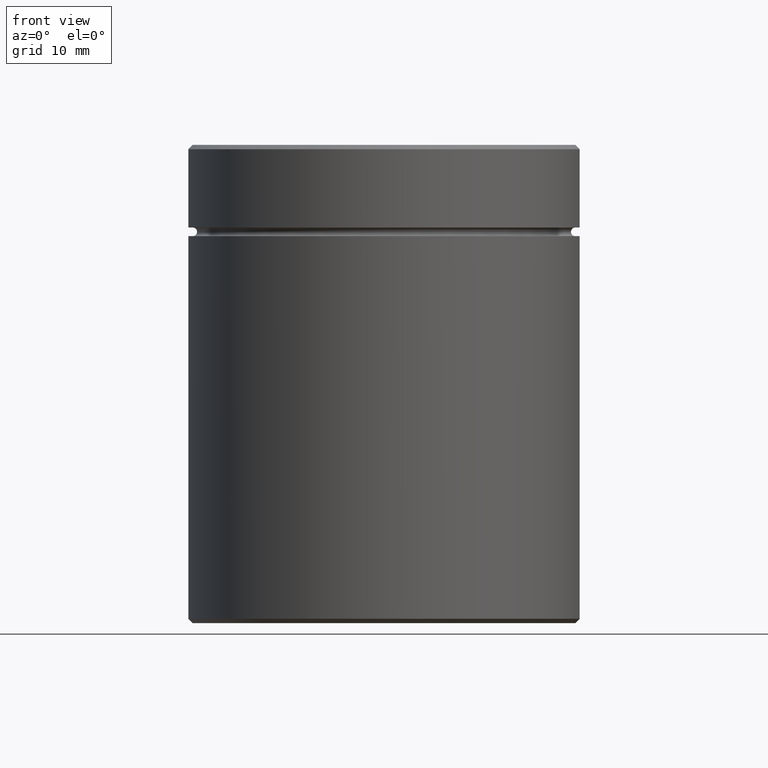
[diagram: clean part render]
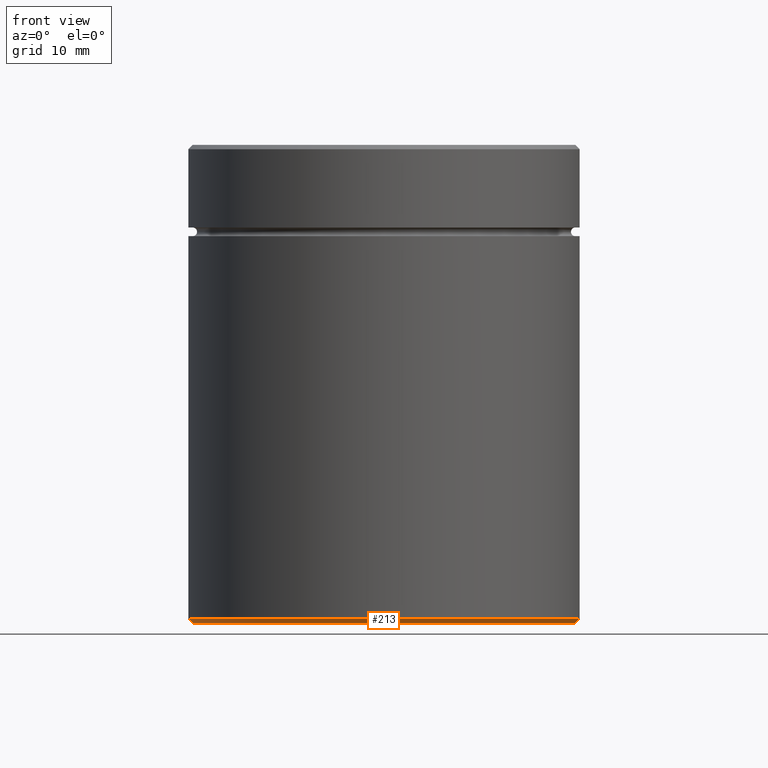
[diagram: same view with one face highlighted and labeled with its STEP entity id]
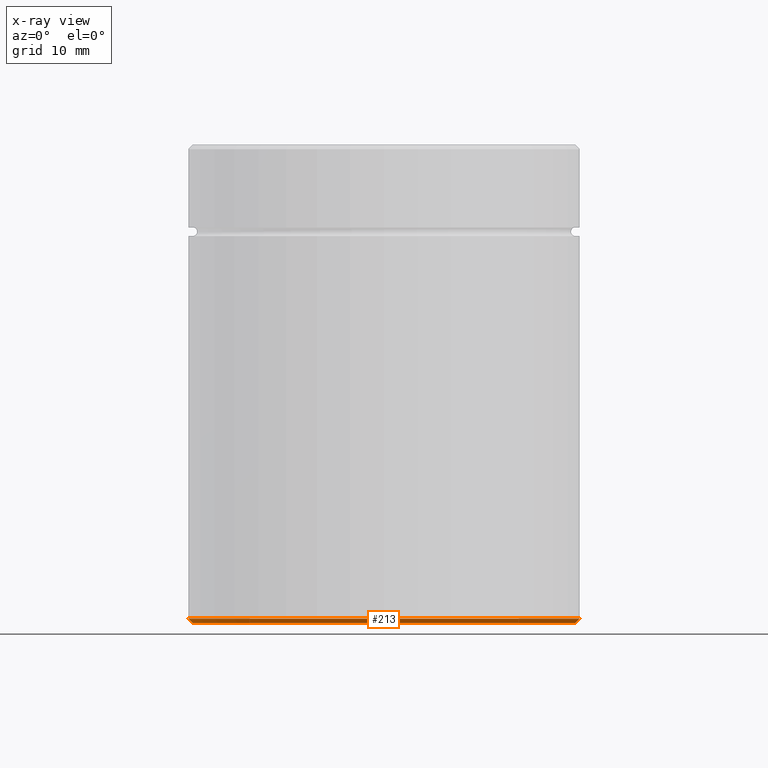
[diagram: x-ray of the same camera — body ghosted, the highlighted face saturated]
A machine part, front view. The second image highlights one B-rep face of the part: STEP entity #213.
The next image is the same camera in x-ray: the body ghosted, the highlighted face saturated — about 0% of this face is hidden behind the body in this view.
In plain terms, the highlighted conical surface has half-angle 45 deg.
Its self-contained STEP definition (entity closure, byte-faithful):
#2 = EDGE_CURVE ( 'NONE', #394, #326, #10, .T. ) ;
#5 = VECTOR ( 'NONE', #186, 1000.000000000000114 ) ;
#10 = CIRCLE ( 'NONE', #49, 22.50000000000000000 ) ;
#23 = CONICAL_SURFACE ( 'NONE', #53, 22.50000000000000000, 0.7853981633974482790 ) ;
#24 = VERTEX_POINT ( 'NONE', #565 ) ;
#32 = EDGE_CURVE ( 'NONE', #24, #326, #135, .T. ) ;
#49 = AXIS2_PLACEMENT_3D ( 'NONE', #485, #486, #173 ) ;
#50 = ORIENTED_EDGE ( 'NONE', *, *, #190, .F. ) ;
#53 = AXIS2_PLACEMENT_3D ( 'NONE', #531, #264, #148 ) ;
#98 = LINE ( 'NONE', #383, #5 ) ;
#135 = LINE ( 'NONE', #367, #357 ) ;
#141 = DIRECTION ( 'NONE',  ( -1.000000000000000000, 0.000000000000000000, 0.000000000000000000 ) ) ;
#148 = DIRECTION ( 'NONE',  ( 1.000000000000000000, 0.000000000000000000, 0.000000000000000000 ) ) ;
#153 = CARTESIAN_POINT ( 'NONE',  ( 22.50000000000000000, 0.000000000000000000, -54.49999999999999289 ) ) ;
#173 = DIRECTION ( 'NONE',  ( -1.000000000000000000, 0.000000000000000000, 0.000000000000000000 ) ) ;
#177 = ORIENTED_EDGE ( 'NONE', *, *, #183, .F. ) ;
#183 = EDGE_CURVE ( 'NONE', #347, #394, #98, .T. ) ;
#186 = DIRECTION ( 'NONE',  ( -0.7071067811865474617, 8.659560562354932858E-17, 0.7071067811865474617 ) ) ;
#190 = EDGE_CURVE ( 'NONE', #24, #347, #225, .T. ) ;
#206 = AXIS2_PLACEMENT_3D ( 'NONE', #449, #441, #141 ) ;
#213 = ADVANCED_FACE ( 'NONE', ( #529 ), #23, .T. ) ;
#225 = CIRCLE ( 'NONE', #206, 21.99999999999999289 ) ;
#264 = DIRECTION ( 'NONE',  ( -0.000000000000000000, -0.000000000000000000, 1.000000000000000000 ) ) ;
#294 = DIRECTION ( 'NONE',  ( 0.7071067811865474617, 0.000000000000000000, 0.7071067811865474617 ) ) ;
#311 = CARTESIAN_POINT ( 'NONE',  ( -21.99999999999999289, 2.724839128102860202E-15, -55.00000000000000000 ) ) ;
#326 = VERTEX_POINT ( 'NONE', #153 ) ;
#347 = VERTEX_POINT ( 'NONE', #311 ) ;
#357 = VECTOR ( 'NONE', #294, 1000.000000000000114 ) ;
#367 = CARTESIAN_POINT ( 'NONE',  ( 22.50000000000000000, 0.000000000000000000, -54.49999999999999289 ) ) ;
#383 = CARTESIAN_POINT ( 'NONE',  ( -22.50000000000000000, 2.755455298081544778E-15, -54.49999999999999289 ) ) ;
#385 = CARTESIAN_POINT ( 'NONE',  ( -22.50000000000000000, 2.755455298081544778E-15, -54.49999999999999289 ) ) ;
#394 = VERTEX_POINT ( 'NONE', #385 ) ;
#411 = ORIENTED_EDGE ( 'NONE', *, *, #2, .F. ) ;
#441 = DIRECTION ( 'NONE',  ( 0.000000000000000000, 0.000000000000000000, -1.000000000000000000 ) ) ;
#449 = CARTESIAN_POINT ( 'NONE',  ( 0.000000000000000000, 0.000000000000000000, -55.00000000000000000 ) ) ;
#485 = CARTESIAN_POINT ( 'NONE',  ( 0.000000000000000000, 0.000000000000000000, -54.49999999999999289 ) ) ;
#486 = DIRECTION ( 'NONE',  ( -0.000000000000000000, -0.000000000000000000, 1.000000000000000000 ) ) ;
#499 = EDGE_LOOP ( 'NONE', ( #177, #50, #558, #411 ) ) ;
#529 = FACE_OUTER_BOUND ( 'NONE', #499, .T. ) ;
#531 = CARTESIAN_POINT ( 'NONE',  ( 0.000000000000000000, 0.000000000000000000, -54.49999999999999289 ) ) ;
#558 = ORIENTED_EDGE ( 'NONE', *, *, #32, .T. ) ;
#565 = CARTESIAN_POINT ( 'NONE',  ( 21.99999999999999289, 0.000000000000000000, -55.00000000000000000 ) ) ;